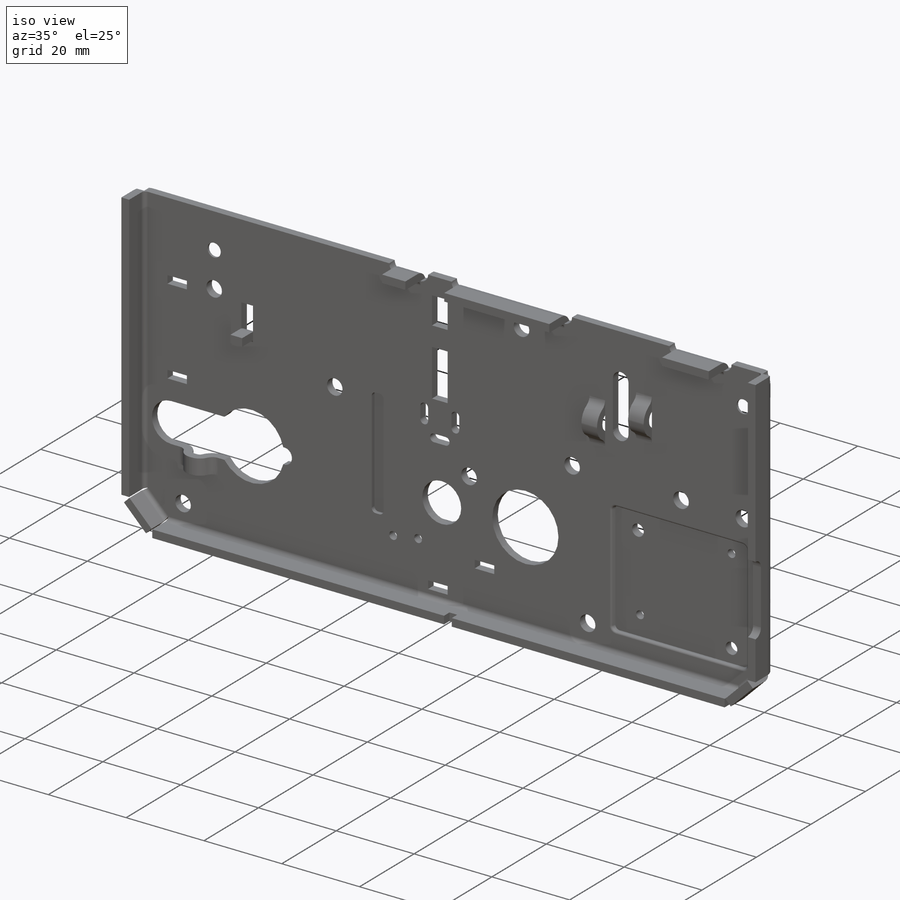
[diagram: iso view]
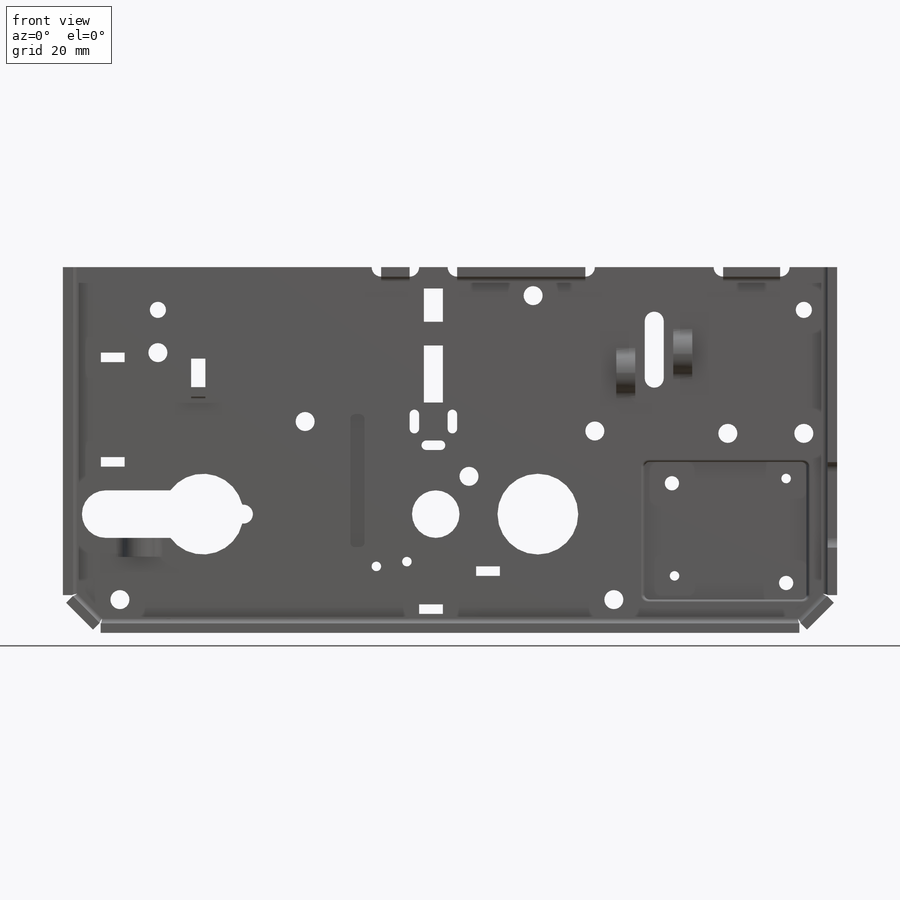
[diagram: front view]
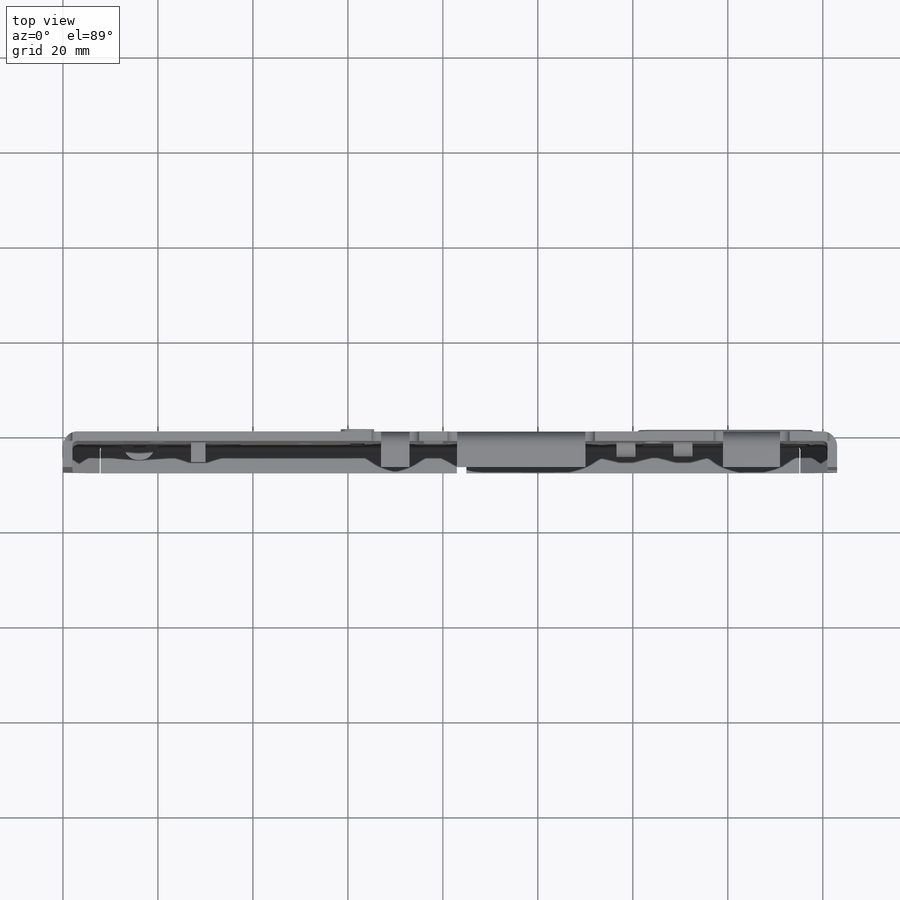
[diagram: top view]
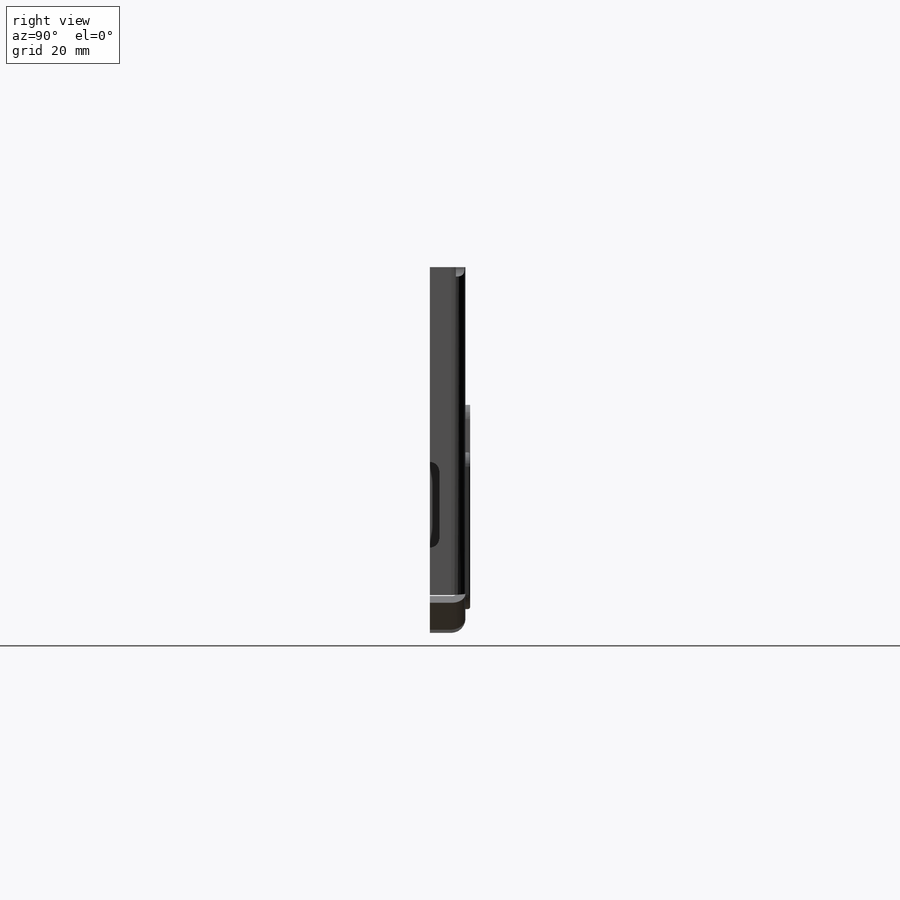
[diagram: right view]
SOLIDWORKS PART (.sldprt)
format: sldprt  version: not decoded by parser v0  size: 19,471,872 bytes
history: native  units: mm
features: sketch x63, plane x21, cut_extrude x21, extrude x13, fillet x11, material x7, hole x5, pattern_linear x2, sheet_metal_op x1 + 9 further entries (+54 scaffold rows collapsed)
feature tree (207):
  scaffold x54  (default folders/planes/origin — collapsed)
  material  "Matériau <non spécifié>"
  material  "Material <not specified>"
  material  "Material <not specified>"
  material  "Material <not specified>"
  material  "Material <not specified>"
  material  "Material <not specified>"
  material  "Material <not specified>"
  plane  "Face"
  plane  "Dessus"
  plane  "Droite"
  sketch  "Esquisse1"  dims[D1=163.0mm D2=77.0mm D3=77.0mm D6=7.0mm D7=7.0mm]
  extrude  "Extrusion2"  Depth=2mm Epaisseur=2mm
  sketch  "Esquisse6"  dims[D1=5.5mm D6=1.0mm D7=5.0mm]
  sheet_metal_op  "Tôlerie 2"
  sketch  "Esquisse-Angle2"  dims[c1.Pli dans angle4=0.0 c1.D1=0.0mm c1.D4=90.0deg c1.D5=5.0 c1.D8=0.0mm c1.D9=0.0mm c1.Pli dans angle5=0.0 c2.D1=0.0mm c2.D4=90.0deg c2.D5=4.0 c2.D8=0.0mm c2.D9=0.0mm c2.Pli dans angle6=0.0 c3.D1=0.0mm c3.D4=90.0deg c3.D5=3.0 c3.D8=0.0mm c3.D9=0.0mm c3.Pli dans angle7=0.0 c4.D1=0.0mm c4.D4=90.0deg c4.D5=2.0 c4.D8=0.0mm c4.D9=0.0mm c5.D1=1.0mm c5.D2=500.0mm c5.D3=0.0mm]
  sketch  "Esquisse-Plate2"  dims[D1=0.0mm]
  sketch  "Esquisse33"  dims[c1.D1=5.0mm c1.D2=4.0mm c2.D1=4.0mm c2.D2=5.0mm]
  plane  "Plane1"
  plane  "Plane2"
  plane  "Plane3"
  sketch  "Sketch1"  dims[D1=50.0mm D2=1.0mm]
  extrude  "Base-Extrude"  Depth=50mm
  sketch  "Sketch2"  dims[c1.D1=20.0mm c1.D2=~12.864573mm c1.D3=~6.100074mm c2.D2=~21.251421mm c3.D2=50.0deg c3.D3=6.0mm c3.D1=29.0mm c4.D2=1.0mm]
  extrude  "Boss-Extrude1"  Depth=35mm
  sketch  "Sketch3"  dims[D1=0.0mm]
  cut_extrude  "Cut-Extrude1"  [1 undecoded]
  sketch  "Orientation sketch"  dims[D1=0.0mm]
  fillet  "Congé2"  Radius=1mm
  fillet  "Congé3"  Radius=0.5mm
  fillet  "Congé4"  Radius=0.5mm
  hole  "Fraisage pour vis à tête fraisée M31"  Diameter=3.4mm Depth=7.500025mm
  sketch  "Esquisse36"  dims[D1=9.0mm D2=7.0mm]
  sketch  "Esquisse35"  dims[hole-wizard template sketch: 55 standard entries collapsed; hole parameters kept: c17.Profondeur du perçage jusqu'au prochain=~7.500025mm c17.Diamètre du fraisage entrant=6.3mm c17.D4=~3.666174mm c17.Angle du fraisage entrant=90.0deg c17.D1=~2.05061mm]
  hole  "Diamètre du perçage Ø4.0 (4)1"  Diameter=4mm Depth=2mm
  sketch  "Esquisse41"  dims[D1=6.0mm D2=64.0mm]
  sketch  "Esquisse40"  dims[hole-wizard template sketch: 59 standard entries collapsed; hole parameters kept: c18.Diamètre du perçage jusqu'au prochain=4.0mm c18.Profondeur du perçage jusqu'au prochain=2.0mm]
  hole  "Diamètre du perçage Ø4.0 (4)2"  Diameter=4mm Depth=2mm
  sketch  "Esquisse45"  dims[D1=7.0mm D2=47.0mm]
  sketch  "Esquisse44"  dims[hole-wizard template sketch: 59 standard entries collapsed; hole parameters kept: c18.Diamètre du perçage jusqu'au prochain=4.0mm c18.Profondeur du perçage jusqu'au prochain=2.0mm]
  pattern_linear  "Répétition linéaire4"  Count1=2 Count2=1 Spacing1=104mm Spacing2=3mm
  hole  "Diamètre du perçage Ø4.0 (4)4"  Diameter=4mm Depth=2mm
  sketch  "Esquisse47"  dims[D1=32.95mm D2=85.5mm]
  sketch  "Esquisse46"  dims[hole-wizard template sketch: 59 standard entries collapsed; hole parameters kept: c18.Diamètre du perçage jusqu'au prochain=4.0mm c18.Profondeur du perçage jusqu'au prochain=2.0mm]
  hole  "Diamètre du perçage Ø4.0 (4)3"  Diameter=4mm Depth=2mm
  sketch  "Esquisse49"  dims[c1.D1=146.0mm c1.D2=18.0mm c2.D1=143.0mm c2.D3=19.0mm]
  sketch  "Esquisse48"  dims[hole-wizard template sketch: 59 standard entries collapsed; hole parameters kept: c18.Diamètre du perçage jusqu'au prochain=4.0mm c18.Profondeur du perçage jusqu'au prochain=2.0mm]
  sketch  "Esquisse50"  dims[D3=4.0mm D1=34.5mm D2=51.0mm]
  cut_extrude  "Enlèv. mat.-Extru.1"  [1 undecoded]
  sketch  "Esquisse57"  dims[D1=4.0mm D2=32.5mm D3=51.0mm D4=~61.032778mm]
  cut_extrude  "Enlèv. mat.-Extru.2"  [1 undecoded]
  sketch  "Esquisse59"  dims[D1=10.0mm D2=17.0mm D3=25.0mm D4=25.0mm D5=21.5mm D6=100.0mm]
  cut_extrude  "Enlèv. mat.-Extru.4"  [1 undecoded]
  sketch  "Esquisse60"  dims[c1.D1=4.0mm c1.D2=4.0mm c1.D3=7.0mm c1.D4=12.0mm c1.D5=5.0mm c1.D6=2.0mm c1.D7=83.0mm c2.D6=4.5mm c2.D8=81.0mm]
  cut_extrude  "Enlèv. mat.-Extru.5"  [1 undecoded]
  sketch  "Esquisse61"  dims[c1.D1=2.0mm c1.D2=2.0mm c1.D3=5.0mm c1.D4=5.0mm c1.D5=7.0mm c1.D6=6.0mm c1.D7=4.0mm c2.D6=4.0mm c2.D7=6.0mm c2.D8=71.0mm]
  cut_extrude  "Enlèv. mat.-Extru.6"  [1 undecoded]
  sketch  "Esquisse62"  dims[D1=5.0mm D2=5.0mm D3=2.0mm D4=2.0mm D5=20.0mm D6=18.0mm D7=8.0mm D8=8.0mm]
  cut_extrude  "Enlèv. mat.-Extru.8"  [1 undecoded]
  sketch  "Esquisse63"  dims[c1.D1=17.0mm c1.D4=4.0mm c1.D2=10.0mm c1.D3=20.5mm c2.D4=12.0mm c2.D3=~13.626136mm c2.D5=20.5mm c3.D3=20.5mm c3.D5=47.0mm c3.D6=9.0mm c4.D5=9.0mm c4.D6=47.0mm]
  cut_extrude  "Enlèv. mat.-Extru.9"  [1 undecoded]
  sketch  "Esquisse118"  dims[c1.D1=4.0mm c1.D3=4.0mm c1.D5=4.0mm c1.D6=4.0mm c1.D8=4.0mm c2.D6=2.0mm c2.D10=4.0mm c2.D11=4.0mm c2.D14=4.0mm c2.D3=2.0mm c2.D2=8.0mm c2.D4=12.0mm c3.D6=27.0mm c3.D7=26.0mm c3.D9=27.0mm c3.D10=27.0mm c4.D9=29.0mm c4.D7=26.0mm c4.D2=11.0mm c4.D12=10.0mm c4.D13=6.0mm c5.D2=12.0mm c5.D9=29.0mm c5.D12=10.0mm c5.D15=1.0mm c6.D12=2.0mm c6.D15=3.0mm c6.D7=10.0mm c6.D3=26.0mm]
  cut_extrude  "Enlèv. mat.-Extru.14"  [1 undecoded]
  sketch  "Esquisse133"  dims[D1=4.0mm D2=4.0mm D3=12.0mm D4=14.0mm]
  cut_extrude  "Enlèv. mat.-Extru.15"  [1 undecoded]
  sketch  "Esquisse146"  dims[D1=7.5mm]
  sketch  "Esquisse154"  dims[D1=7.5mm]
  sketch  "Esquisse156"  dims[c1.D1=7.5mm c1.Pli d'arête8=0.0 c2.D1=1.0mm c2.D4=90.0deg c2.D5=6.0 c2.D8=0.0mm c2.D9=0.0mm c2.Pli d'arête9=0.0 c3.D1=1.0mm c3.D4=90.0deg c3.D5=7.0 c3.D8=0.0mm c3.D9=0.0mm c3.Pli d'arête10=0.0 c4.D1=1.0mm c4.D4=90.0deg c4.D5=8.0 c4.D8=0.0mm c4.D9=0.0mm c5.D1=1.0mm c5.D2=500.0mm c5.D3=0.0mm c5.D6=10.0mm c5.D7=5.5mm c5.D8=1.0mm]
  sketch  "Esquisse161"  dims[c1.D1=4.0mm c1.D2=4.0mm c1.D3=12.0mm c1.D4=35.0mm c1.D5=12.0mm c2.D4=35.0mm c2.D5=11.38mm c3.D4=38.5mm]
  cut_extrude  "Enlèv. mat.-Extru.23"  [1 undecoded]
  sketch  "Esquisse166"  dims[D1=13.0mm D2=2.0mm]
  plane  "Plane1"
  plane  "Plane2"
  plane  "Plane3"
  sketch  "Sketch1"  dims[D1=50.0mm D2=5.0mm]
  extrude  "Base-Extrude"  Depth=50mm
  sketch  "Sketch2"  dims[c1.Width=9.0mm c1.D2=~12.864573mm c1.D3=~6.100074mm c2.D2=~21.251421mm c2.Inside Angle=70.0deg c2.Height from Drop Face=3.0mm c2.D1=~3.965402mm c3.D1=90.0deg c4.D1=3.0mm c4.D2=~6.464102mm]
  extrude  "Boss-Extrude1"  Depth=4mm
  fillet  "Fillet1"  Radius=2mm Inner Fillet Radius=2mm
  fillet  "Fillet2"  Radius=4mm Outer Fillet Radius=4mm
  sketch  "Sketch3"  dims[D1=0.0mm]
  cut_extrude  "Cut-Extrude1"  [1 undecoded]
  sketch  "Orientation sketch"  dims[D1=0.0mm]
  sketch  "Esquisse168"  dims[D2=1.0mm D1=2.0mm D3=17.0mm]
  plane  "Plane1"
  plane  "Plane2"
  plane  "Plane3"
  sketch  "Sketch1"  dims[D1=50.0mm D2=5.0mm]
  extrude  "Base-Extrude"  Depth=50mm
  sketch  "Sketch2"  dims[c1.Width=9.0mm c1.D2=~12.864573mm c1.D3=~6.100074mm c2.D2=~21.251421mm c2.Inside Angle=70.0deg c2.Height from Drop Face=3.0mm c2.D1=~3.965402mm c3.D1=90.0deg c4.D1=3.0mm c4.D2=~6.464102mm]
  extrude  "Boss-Extrude1"  Depth=4mm
  fillet  "Fillet1"  Radius=2mm Inner Fillet Radius=2mm
  fillet  "Fillet2"  Radius=4mm Outer Fillet Radius=4mm
  sketch  "Sketch3"  dims[D1=0.0mm]
  cut_extrude  "Cut-Extrude1"  [1 undecoded]
  sketch  "Orientation sketch"  dims[D2=1.0mm D1=0.0mm]
  sketch  "Esquisse171"  dims[D2=1.0mm]
  plane  "Plane1"
  plane  "Plane2"
  plane  "Plane3"
  sketch  "Sketch1"  dims[D1=50.0mm D2=5.0mm]
  extrude  "Base-Extrude"  Depth=50mm
  sketch  "Sketch2"  dims[c1.Width=9.0mm c1.D2=~12.864573mm c1.D3=~6.100074mm c2.D2=~21.251421mm c2.Inside Angle=70.0deg c2.Height from Drop Face=3.0mm c2.D1=~3.965402mm c3.D1=90.0deg c4.D1=2.0mm c4.D2=~6.464102mm]
  extrude  "Boss-Extrude1"  Depth=4mm
  fillet  "Fillet1"  Radius=1mm Inner Fillet Radius=1mm
  fillet  "Fillet2"  Radius=4mm Outer Fillet Radius=4mm
  sketch  "Sketch3"  dims[D1=0.0mm]
  cut_extrude  "Cut-Extrude1"  [1 undecoded]
  sketch  "Orientation sketch"  dims[D2=1.0mm D1=0.0mm]
  sketch  "Esquisse173"  dims[D1=3.0mm D2=2.0mm D3=3.0mm D4=2.0mm D5=5.5mm D6=6.0mm D7=22.0mm D8=6.0mm D9=23.5mm D10=7.0mm D11=19.5mm D12=7.5mm]
  cut_extrude  "Enlèv. mat.-Extru.26"  [1 undecoded]
  sketch  "Esquisse175"  dims[D1=2.0mm D2=3.0mm D3=8.0mm D4=2.0mm D5=2.0mm D6=6.0mm D7=1.0mm D8=2.5mm D9=3.0mm D10=3.0mm D11=3.5mm D12=3.5mm D13=2.0mm]
  cut_extrude  "Enlèv. mat.-Extru.27"  [1 undecoded]
  sketch  "Esquisse181"  dims[c1.D1=2.0mm c1.D2=2.0mm c1.D3=14.0mm c1.D4=15.0mm c1.D5=6.5mm c1.D6=66.0mm c2.D5=6.5mm]
  cut_extrude  "Enlèv. mat.-Extru.28"  [1 undecoded]
  sketch  "Esquisse190"  dims[D1=23.5mm D2=24.0mm]
  plane  "Plane1"
  plane  "Plane2"
  plane  "Plane3"
  sketch  "Sketch1"  dims[D1=50.0mm D2=5.0mm]
  extrude  "Base-Extrude"  Depth=50mm
  sketch  "Lance Tool sketch"  dims[Height from Drop Face=6.0mm D2=8.0mm]
  extrude  "Lance Tool"  Depth=3mm
  fillet  "Fillet"  Radius=2.5mm Fillet Radius=2.5mm
  sketch  "Sketch3"  dims[D1=0.0mm]
  cut_extrude  "Cut-Extrude1"  [1 undecoded]
  sketch  "Orientation sketch"  dims[D1=0.0mm]
  sketch  "Esquisse192"  dims[c1.D2=4.0mm c1.D3=4.0mm c1.D1=26.0mm c2.D2=10.0mm c2.D4=16.0mm]
  cut_extrude  "Enlèv. mat.-Extru.29"  [1 undecoded]
  pattern_linear  "Répétition linéaire5"  Count1=2 Count2=1 Spacing1=136mm Spacing2=50mm
  sketch  "Esquisse195"  dims[c1.D1=12.0mm c1.D2=45.0mm c2.D1=62.0mm c3.D1=~161.344453deg]
  plane  "Plane1"
  plane  "Plane2"
  plane  "Plane3"
  sketch  "Sketch1"  dims[D1=18.0mm D2=1.0mm]
  extrude  "Base-Extrude"  Depth=50mm
  sketch  "Sketch2"  dims[c1.D1=20.0mm c1.D2=~12.864573mm c1.D3=~6.100074mm c2.D2=~21.251421mm c3.D2=50.0deg c3.D3=6.0mm c3.D1=28.0mm c4.D2=1.0mm]
  extrude  "Boss-Extrude1"  Depth=3mm
  sketch  "Sketch3"  dims[D1=0.0mm]
  cut_extrude  "Cut-Extrude1"  [1 undecoded]
  sketch  "Orientation sketch"  dims[D1=0.0mm]
  fillet  "Congé2"  Radius=1mm
  sketch  "Esquisse196"  dims[D1=2.0mm D2=2.0mm D3=75.0mm]
  cut_extrude  "Enlèv. mat.-Extru.30"  [1 undecoded]
  "Etat déplié2"
  sketch  "Lignes de pliage2"
  "Dépliage-<Pli dans angle5>1"
  "Dépliage-<Pli dans angle6>1"
  "Dépliage-<Pli dans angle7>1"
  "Dépliage-<Pli dans angle8>1"
  "Transformation de l'esquisse1"
  "Dépliage-<Pli d'arête8>1"
  "Dépliage-<Pli d'arête9>1"
  "Dépliage-<Pli d'arête10>1"
decode coverage: 93 of 116 modeling features carry decoded parameters; 9 rows unclassified (native names shown)
note: ~ marks probable driven/reference dimensions
note: 21 parameter values undecoded
summary: no parameter record found for 21 features; Diameter pulled from absorbed wizard sketch
note: suppression state not decoded; provenance and decode notes live in map.json
